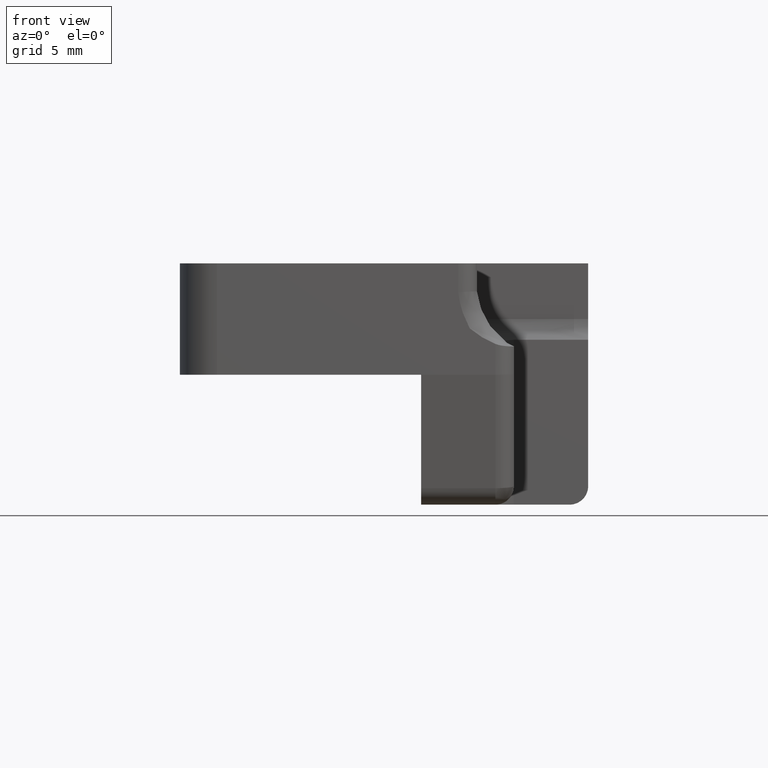
[diagram: clean part render]
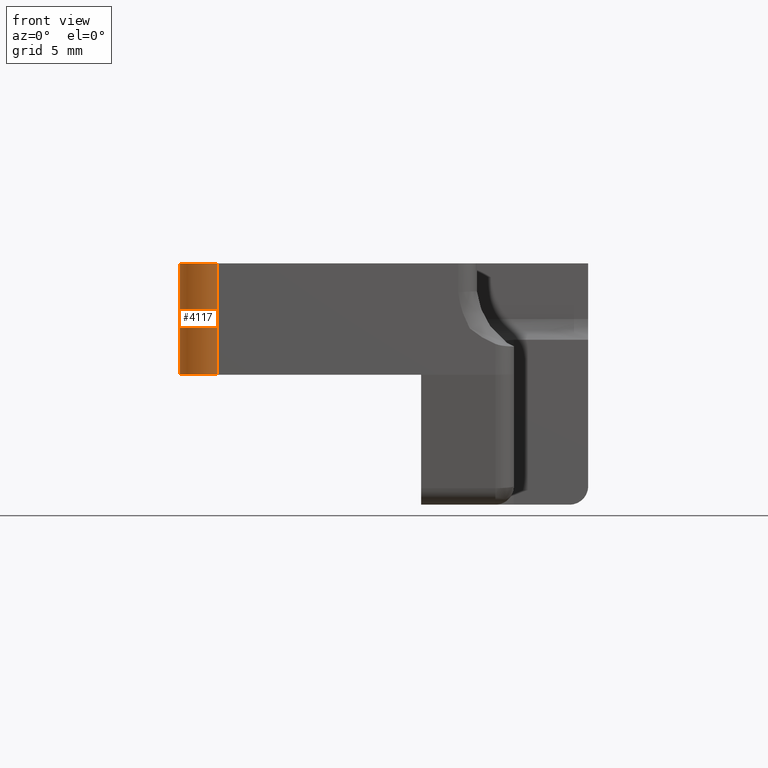
[diagram: same view with one face highlighted and labeled with its STEP entity id]
A machine part, front view. The second image highlights one B-rep face of the part: STEP entity #4117.
In plain terms, the highlighted face is a freeform B-spline surface patch.
Its self-contained STEP definition (entity closure, byte-faithful):
#3974=CARTESIAN_POINT('',(-187.0,-23.0,38.500000000000000));
#3975=VERTEX_POINT('',#3974);
#3981=CARTESIAN_POINT('',(-189.0,-21.0,38.500000000000000));
#3982=VERTEX_POINT('',#3981);
#3983=CARTESIAN_POINT('',(-187.0,-23.0,38.500000000000000));
#3984=CARTESIAN_POINT('',(-189.000000000000030,-22.999999999999993,38.500000000000000));
#3985=CARTESIAN_POINT('',(-189.0,-21.0,38.500000000000000));
#3993=(BOUNDED_CURVE()B_SPLINE_CURVE(2,(#3983,#3984,#3985),.UNSPECIFIED.,.F.,.U.)CURVE()GEOMETRIC_REPRESENTATION_ITEM()QUASI_UNIFORM_CURVE()RATIONAL_B_SPLINE_CURVE((1.0,0.707106781186548,1.0))REPRESENTATION_ITEM(''));
#3994=EDGE_CURVE('',#3975,#3982,#3993,.T.);
#4063=CARTESIAN_POINT('',(-187.0,-23.0,44.500000000000000));
#4064=VERTEX_POINT('',#4063);
#4070=CARTESIAN_POINT('',(-187.0,-23.0,38.500000000000000));
#4071=CARTESIAN_POINT('',(-187.0,-23.0,44.500000000000000));
#4072=QUASI_UNIFORM_CURVE('',1,(#4070,#4071),.UNSPECIFIED.,.F.,.U.);
#4073=EDGE_CURVE('',#3975,#4064,#4072,.T.);
#4079=CARTESIAN_POINT('',(-186.912761225269290,-22.998096443163710,38.350000000000001));
#4080=CARTESIAN_POINT('',(-186.912761225269290,-22.998096443163710,44.653750000000002));
#4081=CARTESIAN_POINT('',(-189.152120104744990,-23.095868963352171,38.350000000000001));
#4082=CARTESIAN_POINT('',(-189.152120104744990,-23.095868963352171,44.653749999999995));
#4083=CARTESIAN_POINT('',(-188.995085852832720,-20.859884191374352,38.350000000000001));
#4084=CARTESIAN_POINT('',(-188.995085852832720,-20.859884191374352,44.653750000000002));
#4092=(BOUNDED_SURFACE()B_SPLINE_SURFACE(1,2,((#4079,#4081,#4083),(#4080,#4082,#4084)),.UNSPECIFIED.,.F.,.F.,.U.)B_SPLINE_SURFACE_WITH_KNOTS((2,2),(3,3),(0.0,6.303750000000004),(0.0,3.583484627607622),.UNSPECIFIED.)GEOMETRIC_REPRESENTATION_ITEM()RATIONAL_B_SPLINE_SURFACE(((1.0,0.664513940762876,0.996233477751728),(1.0,0.664513940762876,0.996233477751728)))REPRESENTATION_ITEM('')SURFACE());
#4093=ORIENTED_EDGE('',*,*,#3994,.F.);
#4094=ORIENTED_EDGE('',*,*,#4073,.T.);
#4095=CARTESIAN_POINT('',(-189.0,-21.0,44.500000000000000));
#4096=VERTEX_POINT('',#4095);
#4097=CARTESIAN_POINT('',(-189.0,-21.0,44.500000000000000));
#4098=CARTESIAN_POINT('',(-189.000000000000030,-22.999999999999993,44.500000000000007));
#4099=CARTESIAN_POINT('',(-187.0,-23.0,44.500000000000000));
#4107=(BOUNDED_CURVE()B_SPLINE_CURVE(2,(#4097,#4098,#4099),.UNSPECIFIED.,.F.,.U.)CURVE()GEOMETRIC_REPRESENTATION_ITEM()QUASI_UNIFORM_CURVE()RATIONAL_B_SPLINE_CURVE((1.0,0.707106781186548,1.0))REPRESENTATION_ITEM(''));
#4108=EDGE_CURVE('',#4096,#4064,#4107,.T.);
#4109=ORIENTED_EDGE('',*,*,#4108,.F.);
#4110=CARTESIAN_POINT('',(-189.0,-21.0,38.500000000000000));
#4111=CARTESIAN_POINT('',(-189.0,-21.0,44.500000000000000));
#4112=QUASI_UNIFORM_CURVE('',1,(#4110,#4111),.UNSPECIFIED.,.F.,.U.);
#4113=EDGE_CURVE('',#3982,#4096,#4112,.T.);
#4114=ORIENTED_EDGE('',*,*,#4113,.F.);
#4115=EDGE_LOOP('',(#4093,#4094,#4109,#4114));
#4116=FACE_OUTER_BOUND('',#4115,.T.);
#4117=ADVANCED_FACE('',(#4116),#4092,.T.);